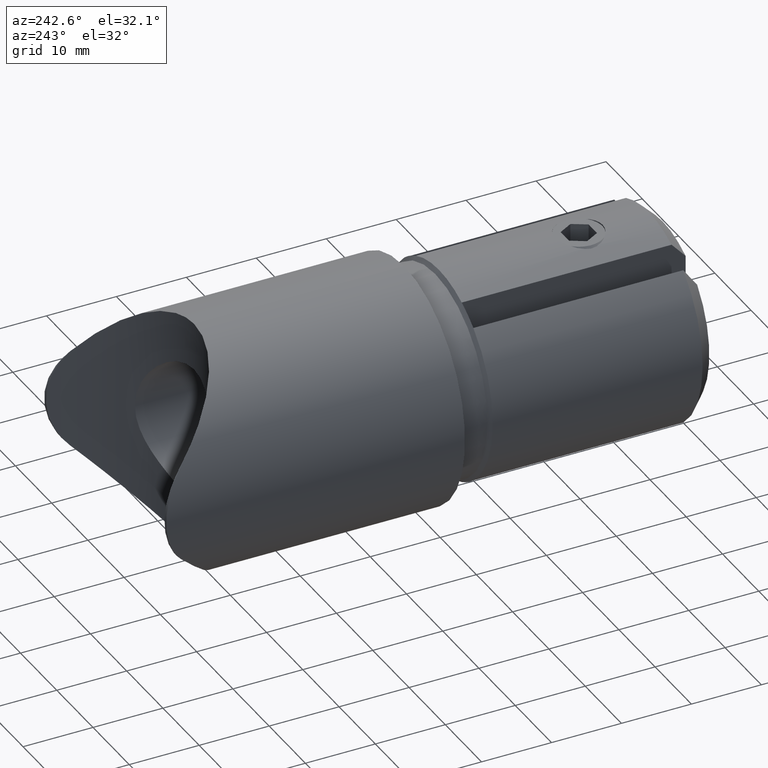
[diagram: clean part render]
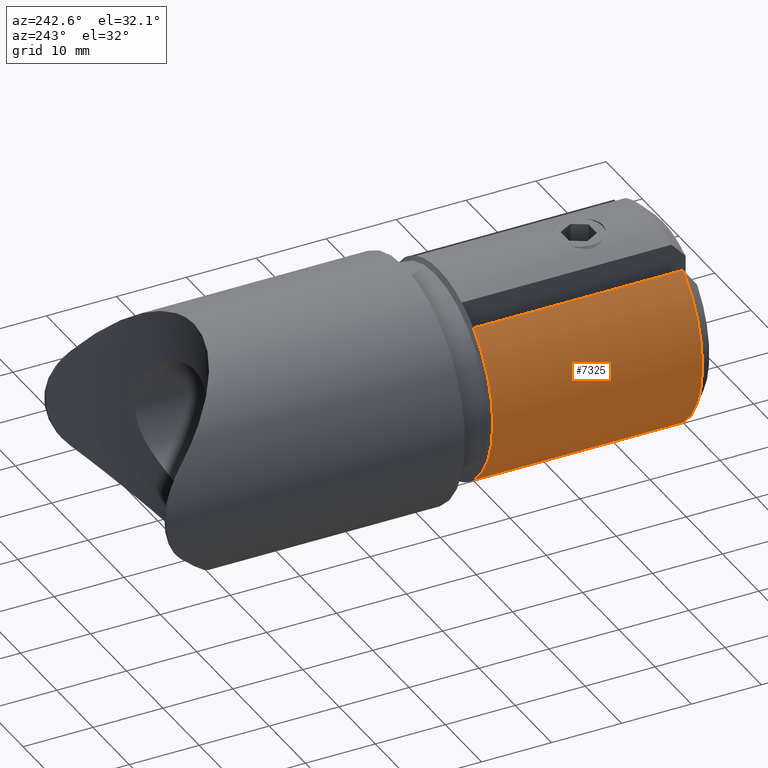
[diagram: same view with one face highlighted and labeled with its STEP entity id]
A machine part, auxiliary view. The second image highlights one B-rep face of the part: STEP entity #7325.
In plain terms, the highlighted cylindrical surface (partial cylindrical patch) has radius 14.85 mm, axis along (0, 1, 0).
Its self-contained STEP definition (entity closure, byte-faithful):
#487 = VERTEX_POINT ( 'NONE', #6064 ) ;
#949 = ORIENTED_EDGE ( 'NONE', *, *, #8969, .T. ) ;
#971 = LINE ( 'NONE', #2375, #7113 ) ;
#1344 = DIRECTION ( 'NONE',  ( -0.0000000000000000000, 1.000000000000000000, -0.0000000000000000000 ) ) ;
#1363 = EDGE_LOOP ( 'NONE', ( #2680, #949, #11733, #12326 ) ) ;
#1456 = VERTEX_POINT ( 'NONE', #2457 ) ;
#2375 = CARTESIAN_POINT ( 'NONE',  ( -9.499999999999996400, -37.00000000000000000, -11.41369791084379900 ) ) ;
#2457 = CARTESIAN_POINT ( 'NONE',  ( -9.500000000000000000, -4.999999999999992900, -11.41369791084380100 ) ) ;
#2680 = ORIENTED_EDGE ( 'NONE', *, *, #5494, .T. ) ;
#2994 = EDGE_CURVE ( 'NONE', #1456, #3492, #971, .T. ) ;
#3492 = VERTEX_POINT ( 'NONE', #6818 ) ;
#3706 = CARTESIAN_POINT ( 'NONE',  ( -9.499999999999996400, -37.00000000000000000, 11.41369791084379900 ) ) ;
#3723 = DIRECTION ( 'NONE',  ( 0.0000000000000000000, 0.0000000000000000000, -1.000000000000000000 ) ) ;
#4597 = CYLINDRICAL_SURFACE ( 'NONE', #13695, 14.85000000000000100 ) ;
#5085 = CIRCLE ( 'NONE', #5186, 14.85000000000000100 ) ;
#5186 = AXIS2_PLACEMENT_3D ( 'NONE', #11876, #8663, #13094 ) ;
#5494 = EDGE_CURVE ( 'NONE', #3492, #487, #8477, .T. ) ;
#5663 = DIRECTION ( 'NONE',  ( 0.0000000000000000000, -1.000000000000000000, 0.0000000000000000000 ) ) ;
#6064 = CARTESIAN_POINT ( 'NONE',  ( -9.499999999999996400, -34.99999999999997900, 11.41369791084379900 ) ) ;
#6123 = DIRECTION ( 'NONE',  ( -0.0000000000000000000, 1.000000000000000000, -0.0000000000000000000 ) ) ;
#6788 = VERTEX_POINT ( 'NONE', #13334 ) ;
#6818 = CARTESIAN_POINT ( 'NONE',  ( -9.499999999999996400, -34.99999999999997900, -11.41369791084379900 ) ) ;
#6939 = CARTESIAN_POINT ( 'NONE',  ( 0.0000000000000000000, -34.99999999999997900, 0.0000000000000000000 ) ) ;
#7113 = VECTOR ( 'NONE', #5663, 1000.000000000000000 ) ;
#7302 = LINE ( 'NONE', #3706, #13140 ) ;
#7325 = ADVANCED_FACE ( 'NONE', ( #12674 ), #4597, .T. ) ;
#8477 = CIRCLE ( 'NONE', #12764, 14.85000000000000100 ) ;
#8663 = DIRECTION ( 'NONE',  ( -0.0000000000000000000, -1.000000000000000000, -0.0000000000000000000 ) ) ;
#8753 = EDGE_CURVE ( 'NONE', #6788, #1456, #5085, .T. ) ;
#8969 = EDGE_CURVE ( 'NONE', #487, #6788, #7302, .T. ) ;
#11733 = ORIENTED_EDGE ( 'NONE', *, *, #8753, .T. ) ;
#11876 = CARTESIAN_POINT ( 'NONE',  ( 0.0000000000000000000, -4.999999999999986700, 0.0000000000000000000 ) ) ;
#12292 = DIRECTION ( 'NONE',  ( 0.0000000000000000000, 0.0000000000000000000, 1.000000000000000000 ) ) ;
#12326 = ORIENTED_EDGE ( 'NONE', *, *, #2994, .T. ) ;
#12445 = DIRECTION ( 'NONE',  ( 0.0000000000000000000, 1.000000000000000000, 0.0000000000000000000 ) ) ;
#12674 = FACE_OUTER_BOUND ( 'NONE', #1363, .T. ) ;
#12764 = AXIS2_PLACEMENT_3D ( 'NONE', #6939, #12445, #3723 ) ;
#13094 = DIRECTION ( 'NONE',  ( 0.0000000000000000000, 0.0000000000000000000, -1.000000000000000000 ) ) ;
#13140 = VECTOR ( 'NONE', #1344, 1000.000000000000000 ) ;
#13334 = CARTESIAN_POINT ( 'NONE',  ( -9.500000000000000000, -4.999999999999992900, 11.41369791084380100 ) ) ;
#13460 = CARTESIAN_POINT ( 'NONE',  ( 0.0000000000000000000, -37.00000000000000000, 0.0000000000000000000 ) ) ;
#13695 = AXIS2_PLACEMENT_3D ( 'NONE', #13460, #6123, #12292 ) ;